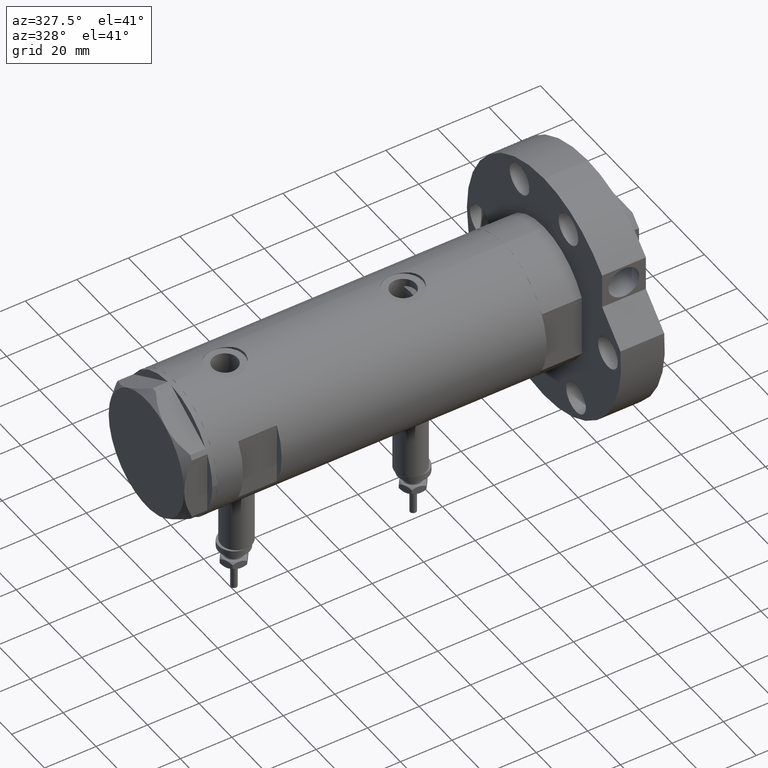
[diagram: clean part render]
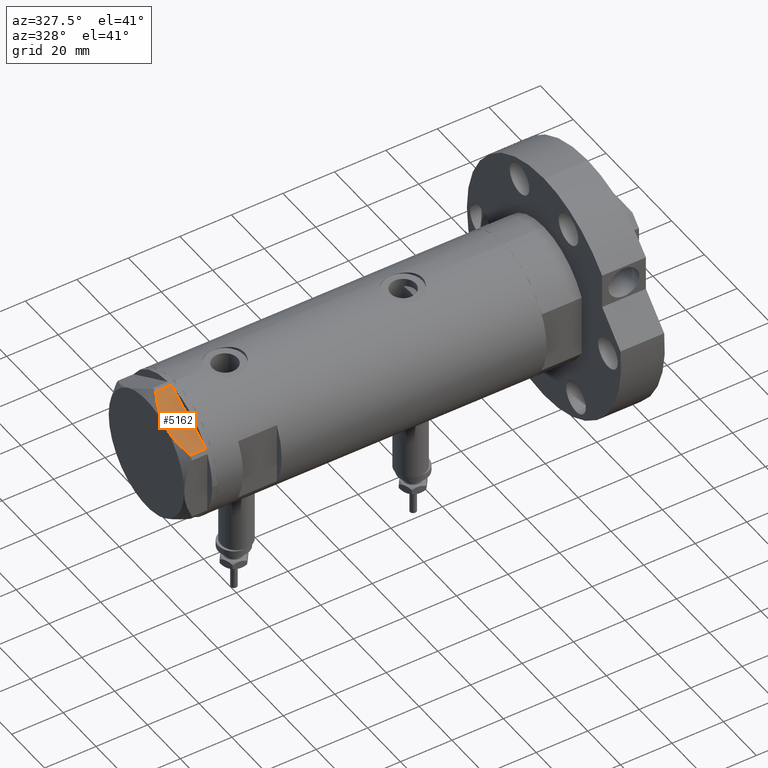
[diagram: same view with one face highlighted and labeled with its STEP entity id]
A machine part, auxiliary view. The second image highlights one B-rep face of the part: STEP entity #5162.
In plain terms, the highlighted planar face has unit normal (-0, 0.5, -0.866).
Its self-contained STEP definition (entity closure, byte-faithful):
#71 = CARTESIAN_POINT ( 'NONE',  ( -22.99999999999990408, -13.27905619136147841, 0.000000000000000000 ) ) ;
#73 = B_SPLINE_CURVE_WITH_KNOTS ( 'NONE', 3,
 ( #2464, #571, #5942, #3249, #8614, #5278, #7829, #3945, #7957, #1936 ),
 .UNSPECIFIED., .F., .F.,
 ( 4, 2, 2, 2, 4 ),
 ( 0.01376519981810312397, 0.01998941321701459134, 0.02154546656674245428, 0.02310151991647032069, 0.02621362661592604310 ),
 .UNSPECIFIED. ) ;
#99 = CARTESIAN_POINT ( 'NONE',  ( -12.41906678023023325, -19.38796083407287085, 8.981686407609506873 ) ) ;
#294 = VECTOR ( 'NONE', #7328, 1000.000000000000000 ) ;
#334 = EDGE_CURVE ( 'NONE', #3655, #830, #649, .T. ) ;
#507 = CARTESIAN_POINT ( 'NONE',  ( -22.99999999999990408, -13.27905619136147841, 9.000000000000000000 ) ) ;
#571 = CARTESIAN_POINT ( 'NONE',  ( -9.678244919010385416, -20.97037507344893115, 9.000000000000088818 ) ) ;
#606 = B_SPLINE_CURVE_WITH_KNOTS ( 'NONE', 3,
 ( #2781, #7399, #842, #5423, #4002, #4796, #7356, #99, #8141, #2114 ),
 .UNSPECIFIED., .F., .F.,
 ( 4, 2, 2, 2, 4 ),
 ( 0.001228959670438514989, 0.007497079744270818830, 0.01063113978118697227, 0.01219816979964504812, 0.01376519981810312397 ),
 .UNSPECIFIED. ) ;
#649 = LINE ( 'NONE', #71, #294 ) ;
#727 = CARTESIAN_POINT ( 'NONE',  ( -22.99999999999990408, -13.27905619136147841, 0.000000000000000000 ) ) ;
#830 = VERTEX_POINT ( 'NONE', #5764 ) ;
#842 = CARTESIAN_POINT ( 'NONE',  ( -18.67981377008999644, -15.77331687414923778, 7.629374868826104716 ) ) ;
#877 = VECTOR ( 'NONE', #3697, 1000.000000000000000 ) ;
#930 = ORIENTED_EDGE ( 'NONE', *, *, #8430, .T. ) ;
#1022 = EDGE_LOOP ( 'NONE', ( #4908, #930, #1994, #5896, #3113, #2881, #1410 ) ) ;
#1387 = DIRECTION ( 'NONE',  ( 0.8660254037844415942, -0.4999999999999950595, 0.000000000000000000 ) ) ;
#1392 = EDGE_CURVE ( 'NONE', #7016, #2803, #4101, .T. ) ;
#1410 = ORIENTED_EDGE ( 'NONE', *, *, #2258, .F. ) ;
#1770 = VECTOR ( 'NONE', #1387, 1000.000000000000000 ) ;
#1905 = EDGE_CURVE ( 'NONE', #3834, #6173, #606, .T. ) ;
#1936 = CARTESIAN_POINT ( 'NONE',  ( -0.9699484522404678843, -25.99811238272155123, 5.983800287808756835 ) ) ;
#1939 = CARTESIAN_POINT ( 'NONE',  ( -22.03005154776132102, -13.83905619136147536, 9.000000000000000000 ) ) ;
#1994 = ORIENTED_EDGE ( 'NONE', *, *, #2089, .T. ) ;
#2089 = EDGE_CURVE ( 'NONE', #7472, #3655, #4356, .T. ) ;
#2114 = CARTESIAN_POINT ( 'NONE',  ( -11.49999999999990585, -19.91858428704219364, 9.000000000000000000 ) ) ;
#2258 = EDGE_CURVE ( 'NONE', #6173, #2803, #73, .T. ) ;
#2464 = CARTESIAN_POINT ( 'NONE',  ( -11.49999999999990585, -19.91858428704219364, 9.000000000000000000 ) ) ;
#2613 = FACE_OUTER_BOUND ( 'NONE', #1022, .T. ) ;
#2781 = CARTESIAN_POINT ( 'NONE',  ( -22.03005154776146313, -13.83905619136139364, 5.983800287807550689 ) ) ;
#2803 = VERTEX_POINT ( 'NONE', #5312 ) ;
#2852 = CARTESIAN_POINT ( 'NONE',  ( -22.03005154776132102, -13.83905619136147536, 0.000000000000000000 ) ) ;
#2881 = ORIENTED_EDGE ( 'NONE', *, *, #1392, .T. ) ;
#3113 = ORIENTED_EDGE ( 'NONE', *, *, #7837, .T. ) ;
#3249 = CARTESIAN_POINT ( 'NONE',  ( -5.671686373603866294, -23.28356272816335348, 8.040681765829727823 ) ) ;
#3443 = CARTESIAN_POINT ( 'NONE',  ( -0.9699484522383977625, -25.99811238272274494, 9.000000000000000000 ) ) ;
#3655 = VERTEX_POINT ( 'NONE', #4311 ) ;
#3697 = DIRECTION ( 'NONE',  ( 0.8660254037844415942, -0.4999999999999950595, 0.000000000000000000 ) ) ;
#3834 = VERTEX_POINT ( 'NONE', #7209 ) ;
#3945 = CARTESIAN_POINT ( 'NONE',  ( -2.640413878808339110, -25.03366871902064261, 6.844201024439214187 ) ) ;
#4002 = CARTESIAN_POINT ( 'NONE',  ( -15.16323225988328538, -17.80361615569431777, 8.637313967156948991 ) ) ;
#4101 = LINE ( 'NONE', #3443, #7608 ) ;
#4152 = LINE ( 'NONE', #727, #1770 ) ;
#4311 = CARTESIAN_POINT ( 'NONE',  ( -21.99999999999998224, -13.85640646055105485, 0.000000000000000000 ) ) ;
#4356 = LINE ( 'NONE', #7087, #877 ) ;
#4472 = CARTESIAN_POINT ( 'NONE',  ( -11.49999999999990585, -19.91858428704219364, 9.000000000000000000 ) ) ;
#4796 = CARTESIAN_POINT ( 'NONE',  ( -13.80210138309694301, -18.58946543380922378, 8.852712638955804181 ) ) ;
#4908 = ORIENTED_EDGE ( 'NONE', *, *, #1905, .F. ) ;
#5162 = ADVANCED_FACE ( 'NONE', ( #2613 ), #5302, .F. ) ;
#5256 = DIRECTION ( 'NONE',  ( -0.8660254037844414832, 0.4999999999999950040, 0.000000000000000000 ) ) ;
#5278 = CARTESIAN_POINT ( 'NONE',  ( -4.357207709417335373, -24.04247733877546267, 7.570552255230290406 ) ) ;
#5285 = CARTESIAN_POINT ( 'NONE',  ( -0.9699484522383943208, -25.99811238272274494, 0.000000000000000000 ) ) ;
#5302 = PLANE ( 'NONE',  #7922 ) ;
#5312 = CARTESIAN_POINT ( 'NONE',  ( -0.9699484522404678843, -25.99811238272155123, 5.983800287808756835 ) ) ;
#5423 = CARTESIAN_POINT ( 'NONE',  ( -16.05322244309625290, -17.28978008384019915, 8.426899937603781865 ) ) ;
#5472 = DIRECTION ( 'NONE',  ( 0.000000000000000000, 0.000000000000000000, 1.000000000000000000 ) ) ;
#5764 = CARTESIAN_POINT ( 'NONE',  ( -0.9999999999997406519, -25.98076211353317433, 0.000000000000000000 ) ) ;
#5896 = ORIENTED_EDGE ( 'NONE', *, *, #334, .T. ) ;
#5942 = CARTESIAN_POINT ( 'NONE',  ( -7.884645426990268824, -22.00591022298511490, 8.707651728477127762 ) ) ;
#6049 = DIRECTION ( 'NONE',  ( 0.4999999999999950595, 0.8660254037844415942, -0.000000000000000000 ) ) ;
#6173 = VERTEX_POINT ( 'NONE', #4472 ) ;
#7016 = VERTEX_POINT ( 'NONE', #5285 ) ;
#7087 = CARTESIAN_POINT ( 'NONE',  ( -22.99999999999990408, -13.27905619136147841, 0.000000000000000000 ) ) ;
#7209 = CARTESIAN_POINT ( 'NONE',  ( -22.03005154776146313, -13.83905619136139364, 5.983800287807550689 ) ) ;
#7328 = DIRECTION ( 'NONE',  ( 0.8660254037844415942, -0.4999999999999950595, 0.000000000000000000 ) ) ;
#7356 = CARTESIAN_POINT ( 'NONE',  ( -13.34348161667001698, -18.85424967941148822, 8.907842277728438063 ) ) ;
#7399 = CARTESIAN_POINT ( 'NONE',  ( -20.37350567916426058, -14.79546339452094017, 6.877782426143456362 ) ) ;
#7472 = VERTEX_POINT ( 'NONE', #2852 ) ;
#7608 = VECTOR ( 'NONE', #5472, 1000.000000000000000 ) ;
#7703 = VECTOR ( 'NONE', #8044, 1000.000000000000000 ) ;
#7829 = CARTESIAN_POINT ( 'NONE',  ( -3.925137811031424562, -24.29193301091729396, 7.397272853992039821 ) ) ;
#7837 = EDGE_CURVE ( 'NONE', #830, #7016, #4152, .T. ) ;
#7922 = AXIS2_PLACEMENT_3D ( 'NONE', #507, #6049, #5256 ) ;
#7957 = CARTESIAN_POINT ( 'NONE',  ( -1.799196345398571983, -25.51934588838179607, 6.431317509510369845 ) ) ;
#7961 = LINE ( 'NONE', #1939, #7703 ) ;
#8044 = DIRECTION ( 'NONE',  ( -0.000000000000000000, 0.000000000000000000, -1.000000000000000000 ) ) ;
#8141 = CARTESIAN_POINT ( 'NONE',  ( -11.95865151389046588, -19.65378171203314395, 9.000000000000095923 ) ) ;
#8430 = EDGE_CURVE ( 'NONE', #3834, #7472, #7961, .T. ) ;
#8614 = CARTESIAN_POINT ( 'NONE',  ( -5.229981517799206614, -23.53858114556453529, 7.892128867758890998 ) ) ;